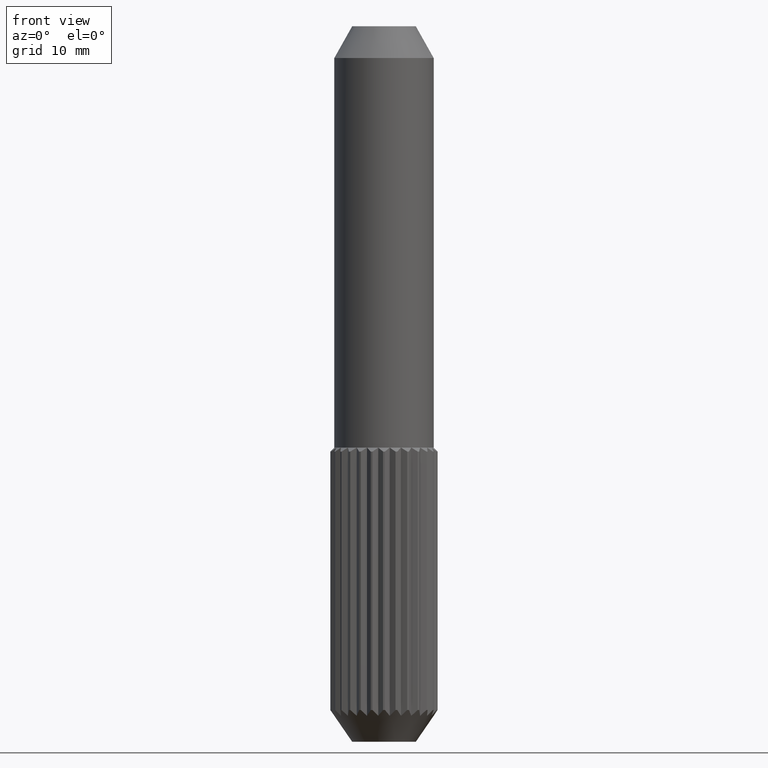
[diagram: clean part render]
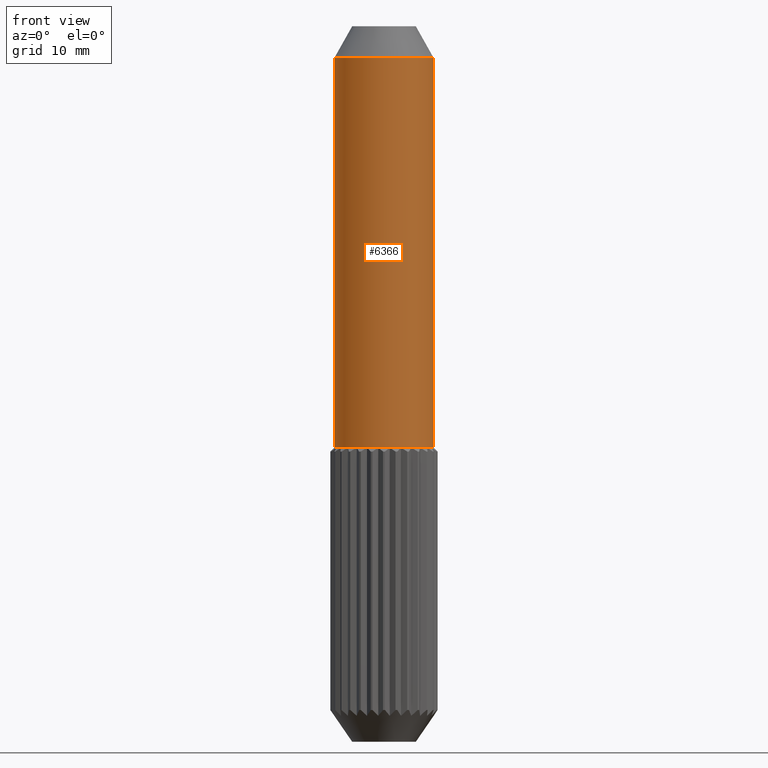
[diagram: same view with one face highlighted and labeled with its STEP entity id]
A machine part, front view. The second image highlights one B-rep face of the part: STEP entity #6366.
In plain terms, the highlighted cylindrical surface (partial cylindrical patch) has radius 6.25 mm, axis along (-0, -0, 1).
Its self-contained STEP definition (entity closure, byte-faithful):
#8 = DIRECTION ( 'NONE',  ( 1.000000000000000000, 0.000000000000000000, 0.000000000000000000 ) ) ;
#600 = DIRECTION ( 'NONE',  ( 1.000000000000000000, 0.000000000000000000, 0.000000000000000000 ) ) ;
#647 = EDGE_CURVE ( 'NONE', #8395, #885, #7281, .T. ) ;
#697 = DIRECTION ( 'NONE',  ( 1.000000000000000000, 0.000000000000000000, 0.000000000000000000 ) ) ;
#704 = CIRCLE ( 'NONE', #4248, 6.249999999999994671 ) ;
#777 = CARTESIAN_POINT ( 'NONE',  ( -4.546334776638922825, -4.288745748901829913, -8.000000000000007105 ) ) ;
#885 = VERTEX_POINT ( 'NONE', #10397 ) ;
#969 = VERTEX_POINT ( 'NONE', #13216 ) ;
#1022 = ORIENTED_EDGE ( 'NONE', *, *, #7296, .F. ) ;
#1092 = VERTEX_POINT ( 'NONE', #6827 ) ;
#1178 = CARTESIAN_POINT ( 'NONE',  ( 6.249999999999996447, 0.000000000000000000, 45.00000000000000711 ) ) ;
#1362 = ORIENTED_EDGE ( 'NONE', *, *, #6519, .T. ) ;
#1688 = VERTEX_POINT ( 'NONE', #12726 ) ;
#1746 = ORIENTED_EDGE ( 'NONE', *, *, #13112, .T. ) ;
#1885 = DIRECTION ( 'NONE',  ( -0.000000000000000000, -0.000000000000000000, 1.000000000000000000 ) ) ;
#1910 = LINE ( 'NONE', #14115, #10261 ) ;
#1964 = DIRECTION ( 'NONE',  ( -0.000000000000000000, -0.000000000000000000, 1.000000000000000000 ) ) ;
#1994 = AXIS2_PLACEMENT_3D ( 'NONE', #5803, #10500, #9263 ) ;
#2475 = AXIS2_PLACEMENT_3D ( 'NONE', #5499, #1964, #11267 ) ;
#2534 = VERTEX_POINT ( 'NONE', #9011 ) ;
#3009 = ORIENTED_EDGE ( 'NONE', *, *, #5998, .T. ) ;
#3057 = VERTEX_POINT ( 'NONE', #11946 ) ;
#3073 = ORIENTED_EDGE ( 'NONE', *, *, #4706, .T. ) ;
#3093 = DIRECTION ( 'NONE',  ( -0.000000000000000000, -0.000000000000000000, 1.000000000000000000 ) ) ;
#3177 = DIRECTION ( 'NONE',  ( 1.000000000000000000, 0.000000000000000000, 0.000000000000000000 ) ) ;
#3201 = ORIENTED_EDGE ( 'NONE', *, *, #14855, .F. ) ;
#3275 = VECTOR ( 'NONE', #13002, 1000.000000000000000 ) ;
#3739 = EDGE_CURVE ( 'NONE', #8210, #14880, #7977, .T. ) ;
#3771 = DIRECTION ( 'NONE',  ( 1.000000000000000000, 0.000000000000000000, 0.000000000000000000 ) ) ;
#3846 = AXIS2_PLACEMENT_3D ( 'NONE', #5742, #14032, #6933 ) ;
#3867 = AXIS2_PLACEMENT_3D ( 'NONE', #4201, #7772, #697 ) ;
#3904 = AXIS2_PLACEMENT_3D ( 'NONE', #5530, #6824, #3177 ) ;
#4046 = ORIENTED_EDGE ( 'NONE', *, *, #14369, .T. ) ;
#4122 = AXIS2_PLACEMENT_3D ( 'NONE', #13923, #15105, #5568 ) ;
#4201 = CARTESIAN_POINT ( 'NONE',  ( 0.000000000000000000, 0.000000000000000000, -8.000000000000007105 ) ) ;
#4248 = AXIS2_PLACEMENT_3D ( 'NONE', #4972, #7462, #3771 ) ;
#4450 = ORIENTED_EDGE ( 'NONE', *, *, #8029, .T. ) ;
#4528 = CARTESIAN_POINT ( 'NONE',  ( -6.239447120692720894, -0.3630421849858597727, -8.000000000000007105 ) ) ;
#4706 = EDGE_CURVE ( 'NONE', #10097, #14484, #9772, .T. ) ;
#4972 = CARTESIAN_POINT ( 'NONE',  ( 0.000000000000000000, 0.000000000000000000, 41.00000000000000711 ) ) ;
#4998 = AXIS2_PLACEMENT_3D ( 'NONE', #13768, #3093, #9150 ) ;
#5134 = EDGE_CURVE ( 'NONE', #969, #12479, #9959, .T. ) ;
#5142 = EDGE_CURVE ( 'NONE', #885, #969, #12364, .T. ) ;
#5300 = CARTESIAN_POINT ( 'NONE',  ( 0.000000000000000000, 0.000000000000000000, -8.000000000000007105 ) ) ;
#5499 = CARTESIAN_POINT ( 'NONE',  ( 0.000000000000000000, 0.000000000000000000, -8.000000000000007105 ) ) ;
#5530 = CARTESIAN_POINT ( 'NONE',  ( 0.000000000000000000, 0.000000000000000000, -8.000000000000007105 ) ) ;
#5568 = DIRECTION ( 'NONE',  ( 1.000000000000000000, 0.000000000000000000, 0.000000000000000000 ) ) ;
#5577 = EDGE_LOOP ( 'NONE', ( #3201, #1746, #9647, #7148, #8295, #13588, #6423, #12288, #14863, #3009, #4450, #9378, #1362, #3073, #4046, #13151, #9811, #1022 ) ) ;
#5698 = DIRECTION ( 'NONE',  ( 1.000000000000000000, 0.000000000000000000, 0.000000000000000000 ) ) ;
#5742 = CARTESIAN_POINT ( 'NONE',  ( 0.000000000000000000, 0.000000000000000000, -8.000000000000007105 ) ) ;
#5803 = CARTESIAN_POINT ( 'NONE',  ( 0.000000000000000000, 0.000000000000000000, -8.000000000000007105 ) ) ;
#5850 = CARTESIAN_POINT ( 'NONE',  ( 0.000000000000000000, 0.000000000000000000, -8.000000000000007105 ) ) ;
#5998 = EDGE_CURVE ( 'NONE', #15147, #14924, #13074, .T. ) ;
#6069 = EDGE_CURVE ( 'NONE', #3057, #1688, #11976, .T. ) ;
#6071 = DIRECTION ( 'NONE',  ( -0.000000000000000000, -0.000000000000000000, 1.000000000000000000 ) ) ;
#6366 = ADVANCED_FACE ( 'NONE', ( #11777 ), #10307, .T. ) ;
#6423 = ORIENTED_EDGE ( 'NONE', *, *, #3739, .T. ) ;
#6519 = EDGE_CURVE ( 'NONE', #10339, #10097, #7172, .T. ) ;
#6574 = CIRCLE ( 'NONE', #2475, 6.249999999999999112 ) ;
#6671 = EDGE_CURVE ( 'NONE', #14880, #1092, #13461, .T. ) ;
#6773 = CARTESIAN_POINT ( 'NONE',  ( 0.000000000000000000, 0.000000000000000000, -8.000000000000007105 ) ) ;
#6824 = DIRECTION ( 'NONE',  ( -0.000000000000000000, -0.000000000000000000, 1.000000000000000000 ) ) ;
#6827 = CARTESIAN_POINT ( 'NONE',  ( -0.7259418637128850493, -6.207697512806905848, -8.000000000000007105 ) ) ;
#6929 = CARTESIAN_POINT ( 'NONE',  ( 5.412476959362495954, -3.125314890434259585, -8.000000000000007105 ) ) ;
#6933 = DIRECTION ( 'NONE',  ( 1.000000000000000000, 0.000000000000000000, 0.000000000000000000 ) ) ;
#6937 = DIRECTION ( 'NONE',  ( -0.000000000000000000, -0.000000000000000000, 1.000000000000000000 ) ) ;
#7089 = AXIS2_PLACEMENT_3D ( 'NONE', #10756, #6071, #15284 ) ;
#7118 = DIRECTION ( 'NONE',  ( -0.000000000000000000, -0.000000000000000000, 1.000000000000000000 ) ) ;
#7129 = CIRCLE ( 'NONE', #3867, 6.249999999999999112 ) ;
#7148 = ORIENTED_EDGE ( 'NONE', *, *, #5142, .T. ) ;
#7172 = CIRCLE ( 'NONE', #14760, 6.249999999999999112 ) ;
#7281 = CIRCLE ( 'NONE', #7089, 6.249999999999999112 ) ;
#7296 = EDGE_CURVE ( 'NONE', #2534, #1688, #704, .T. ) ;
#7448 = CARTESIAN_POINT ( 'NONE',  ( 5.987330157240970507, -1.792868536227020471, -8.000000000000007105 ) ) ;
#7462 = DIRECTION ( 'NONE',  ( -0.000000000000000000, -0.000000000000000000, 1.000000000000000000 ) ) ;
#7516 = VERTEX_POINT ( 'NONE', #14877 ) ;
#7671 = DIRECTION ( 'NONE',  ( -0.000000000000000000, -0.000000000000000000, 1.000000000000000000 ) ) ;
#7772 = DIRECTION ( 'NONE',  ( -0.000000000000000000, -0.000000000000000000, 1.000000000000000000 ) ) ;
#7977 = CIRCLE ( 'NONE', #4998, 6.249999999999999112 ) ;
#8029 = EDGE_CURVE ( 'NONE', #14924, #7516, #12336, .T. ) ;
#8030 = DIRECTION ( 'NONE',  ( -0.000000000000000000, -0.000000000000000000, 1.000000000000000000 ) ) ;
#8102 = VERTEX_POINT ( 'NONE', #10174 ) ;
#8126 = CARTESIAN_POINT ( 'NONE',  ( 0.000000000000000000, 0.000000000000000000, -8.000000000000007105 ) ) ;
#8133 = AXIS2_PLACEMENT_3D ( 'NONE', #5300, #7671, #600 ) ;
#8210 = VERTEX_POINT ( 'NONE', #8434 ) ;
#8259 = CIRCLE ( 'NONE', #11277, 6.249999999999999112 ) ;
#8295 = ORIENTED_EDGE ( 'NONE', *, *, #5134, .T. ) ;
#8395 = VERTEX_POINT ( 'NONE', #4528 ) ;
#8413 = CARTESIAN_POINT ( 'NONE',  ( 6.239404836579934610, -0.3637681751650554407, -8.000000000000007105 ) ) ;
#8434 = CARTESIAN_POINT ( 'NONE',  ( -3.434734899071241188, -5.221599005391170500, -8.000000000000007105 ) ) ;
#8468 = CARTESIAN_POINT ( 'NONE',  ( -2.137967574046629515, -5.872954507939352808, -8.000000000000007105 ) ) ;
#8822 = CIRCLE ( 'NONE', #3846, 6.249999999999999112 ) ;
#9011 = CARTESIAN_POINT ( 'NONE',  ( -6.249999999999994671, 7.654042494670952676E-16, 41.00000000000000711 ) ) ;
#9026 = EDGE_CURVE ( 'NONE', #7516, #10339, #8259, .T. ) ;
#9052 = DIRECTION ( 'NONE',  ( -0.000000000000000000, -0.000000000000000000, 1.000000000000000000 ) ) ;
#9086 = EDGE_CURVE ( 'NONE', #12479, #8210, #8822, .T. ) ;
#9150 = DIRECTION ( 'NONE',  ( 1.000000000000000000, 0.000000000000000000, 0.000000000000000000 ) ) ;
#9209 = DIRECTION ( 'NONE',  ( 1.000000000000000000, 0.000000000000000000, 0.000000000000000000 ) ) ;
#9212 = CARTESIAN_POINT ( 'NONE',  ( 0.000000000000000000, 0.000000000000000000, -8.000000000000007105 ) ) ;
#9263 = DIRECTION ( 'NONE',  ( 1.000000000000000000, 0.000000000000000000, 0.000000000000000000 ) ) ;
#9378 = ORIENTED_EDGE ( 'NONE', *, *, #9026, .T. ) ;
#9474 = AXIS2_PLACEMENT_3D ( 'NONE', #5850, #6937, #9209 ) ;
#9587 = DIRECTION ( 'NONE',  ( -0.000000000000000000, -0.000000000000000000, 1.000000000000000000 ) ) ;
#9647 = ORIENTED_EDGE ( 'NONE', *, *, #647, .T. ) ;
#9706 = EDGE_CURVE ( 'NONE', #1092, #15147, #10104, .T. ) ;
#9772 = CIRCLE ( 'NONE', #13215, 6.249999999999999112 ) ;
#9811 = ORIENTED_EDGE ( 'NONE', *, *, #6069, .T. ) ;
#9959 = CIRCLE ( 'NONE', #14262, 6.249999999999999112 ) ;
#10017 = CARTESIAN_POINT ( 'NONE',  ( 4.545835727637345336, -4.289274709940579022, -8.000000000000007105 ) ) ;
#10097 = VERTEX_POINT ( 'NONE', #6929 ) ;
#10104 = CIRCLE ( 'NONE', #8133, 6.249999999999999112 ) ;
#10169 = DIRECTION ( 'NONE',  ( 1.000000000000000000, 0.000000000000000000, 0.000000000000000000 ) ) ;
#10174 = CARTESIAN_POINT ( 'NONE',  ( -6.249999999999999112, 0.000000000000000000, -8.000000000000007105 ) ) ;
#10261 = VECTOR ( 'NONE', #7118, 1000.000000000000000 ) ;
#10307 = CYLINDRICAL_SURFACE ( 'NONE', #4122, 6.249999999999996447 ) ;
#10339 = VERTEX_POINT ( 'NONE', #10017 ) ;
#10397 = CARTESIAN_POINT ( 'NONE',  ( -5.987538726437350967, -1.792171866594546303, -8.000000000000007105 ) ) ;
#10500 = DIRECTION ( 'NONE',  ( -0.000000000000000000, -0.000000000000000000, 1.000000000000000000 ) ) ;
#10654 = VERTEX_POINT ( 'NONE', #8413 ) ;
#10756 = CARTESIAN_POINT ( 'NONE',  ( 0.000000000000000000, 0.000000000000000000, -8.000000000000007105 ) ) ;
#10821 = CARTESIAN_POINT ( 'NONE',  ( 2.137284210289149833, -5.873203232006252605, -8.000000000000007105 ) ) ;
#11267 = DIRECTION ( 'NONE',  ( 1.000000000000000000, 0.000000000000000000, 0.000000000000000000 ) ) ;
#11277 = AXIS2_PLACEMENT_3D ( 'NONE', #12746, #11511, #15070 ) ;
#11398 = CARTESIAN_POINT ( 'NONE',  ( 0.000000000000000000, 0.000000000000000000, -8.000000000000007105 ) ) ;
#11511 = DIRECTION ( 'NONE',  ( -0.000000000000000000, -0.000000000000000000, 1.000000000000000000 ) ) ;
#11666 = DIRECTION ( 'NONE',  ( -0.000000000000000000, -0.000000000000000000, 1.000000000000000000 ) ) ;
#11777 = FACE_OUTER_BOUND ( 'NONE', #5577, .T. ) ;
#11946 = CARTESIAN_POINT ( 'NONE',  ( 6.249999999999999112, 0.000000000000000000, -8.000000000000007105 ) ) ;
#11965 = DIRECTION ( 'NONE',  ( 1.000000000000000000, 0.000000000000000000, 0.000000000000000000 ) ) ;
#11976 = LINE ( 'NONE', #1178, #3275 ) ;
#12288 = ORIENTED_EDGE ( 'NONE', *, *, #6671, .T. ) ;
#12336 = CIRCLE ( 'NONE', #13783, 6.249999999999999112 ) ;
#12364 = CIRCLE ( 'NONE', #3904, 6.249999999999999112 ) ;
#12479 = VERTEX_POINT ( 'NONE', #777 ) ;
#12596 = DIRECTION ( 'NONE',  ( 1.000000000000000000, 0.000000000000000000, 0.000000000000000000 ) ) ;
#12726 = CARTESIAN_POINT ( 'NONE',  ( 6.249999999999994671, 0.000000000000000000, 41.00000000000000711 ) ) ;
#12746 = CARTESIAN_POINT ( 'NONE',  ( 0.000000000000000000, 0.000000000000000000, -8.000000000000007105 ) ) ;
#13002 = DIRECTION ( 'NONE',  ( -0.000000000000000000, -0.000000000000000000, 1.000000000000000000 ) ) ;
#13038 = CARTESIAN_POINT ( 'NONE',  ( 0.000000000000000000, 0.000000000000000000, -8.000000000000007105 ) ) ;
#13074 = CIRCLE ( 'NONE', #9474, 6.249999999999999112 ) ;
#13112 = EDGE_CURVE ( 'NONE', #8102, #8395, #7129, .T. ) ;
#13151 = ORIENTED_EDGE ( 'NONE', *, *, #13179, .T. ) ;
#13179 = EDGE_CURVE ( 'NONE', #10654, #3057, #13214, .T. ) ;
#13214 = CIRCLE ( 'NONE', #1994, 6.249999999999999112 ) ;
#13215 = AXIS2_PLACEMENT_3D ( 'NONE', #9212, #8030, #5698 ) ;
#13216 = CARTESIAN_POINT ( 'NONE',  ( -5.412840569623110554, -3.124685098988721599, -8.000000000000007105 ) ) ;
#13461 = CIRCLE ( 'NONE', #15050, 6.249999999999999112 ) ;
#13583 = CARTESIAN_POINT ( 'NONE',  ( 0.7252195603966690163, -6.207781937956427853, -8.000000000000007105 ) ) ;
#13588 = ORIENTED_EDGE ( 'NONE', *, *, #9086, .T. ) ;
#13768 = CARTESIAN_POINT ( 'NONE',  ( 0.000000000000000000, 0.000000000000000000, -8.000000000000007105 ) ) ;
#13783 = AXIS2_PLACEMENT_3D ( 'NONE', #6773, #9052, #12596 ) ;
#13923 = CARTESIAN_POINT ( 'NONE',  ( 0.000000000000000000, 0.000000000000000000, 45.00000000000000711 ) ) ;
#14032 = DIRECTION ( 'NONE',  ( -0.000000000000000000, -0.000000000000000000, 1.000000000000000000 ) ) ;
#14115 = CARTESIAN_POINT ( 'NONE',  ( -6.249999999999996447, 7.654042494670953662E-16, 45.00000000000000711 ) ) ;
#14262 = AXIS2_PLACEMENT_3D ( 'NONE', #11398, #1885, #10169 ) ;
#14369 = EDGE_CURVE ( 'NONE', #14484, #10654, #6574, .T. ) ;
#14484 = VERTEX_POINT ( 'NONE', #7448 ) ;
#14760 = AXIS2_PLACEMENT_3D ( 'NONE', #13038, #9587, #11965 ) ;
#14855 = EDGE_CURVE ( 'NONE', #8102, #2534, #1910, .T. ) ;
#14863 = ORIENTED_EDGE ( 'NONE', *, *, #9706, .T. ) ;
#14877 = CARTESIAN_POINT ( 'NONE',  ( 3.434127315189547947, -5.221998619596621261, -8.000000000000007105 ) ) ;
#14880 = VERTEX_POINT ( 'NONE', #8468 ) ;
#14924 = VERTEX_POINT ( 'NONE', #10821 ) ;
#15050 = AXIS2_PLACEMENT_3D ( 'NONE', #8126, #11666, #8 ) ;
#15070 = DIRECTION ( 'NONE',  ( 1.000000000000000000, 0.000000000000000000, 0.000000000000000000 ) ) ;
#15105 = DIRECTION ( 'NONE',  ( -0.000000000000000000, -0.000000000000000000, 1.000000000000000000 ) ) ;
#15147 = VERTEX_POINT ( 'NONE', #13583 ) ;
#15284 = DIRECTION ( 'NONE',  ( 1.000000000000000000, 0.000000000000000000, 0.000000000000000000 ) ) ;